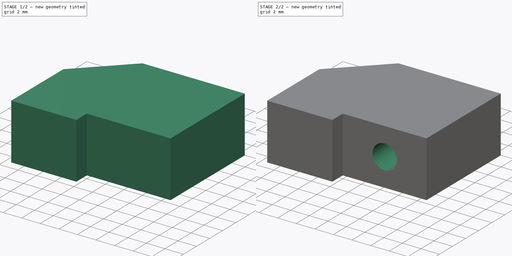
[diagram: build sequence overview — one tinted view per stage of 2, left to right]
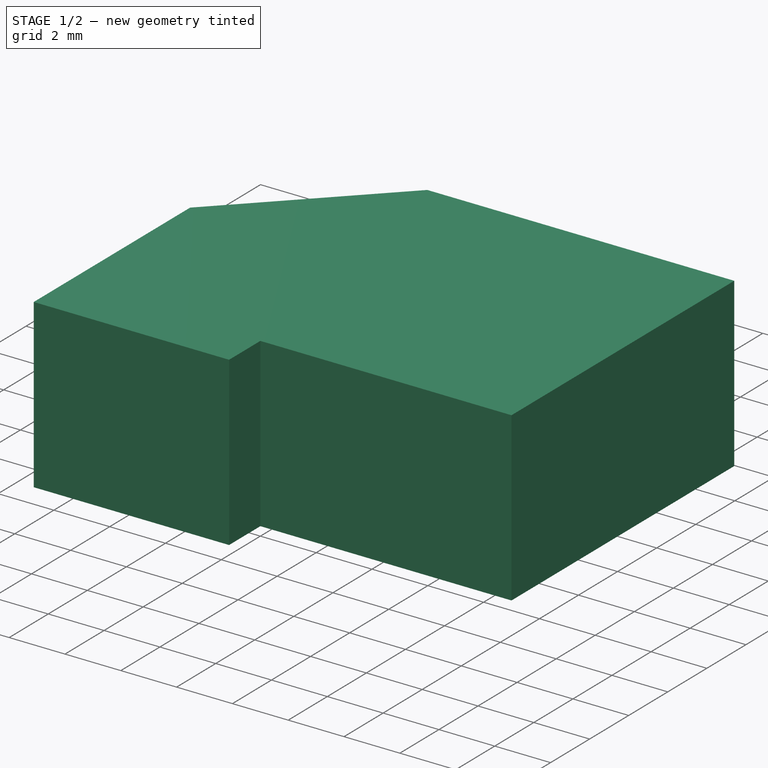
[diagram: stage 1 of 2 — iso view after this stage's code; geometry added in this stage tinted green]
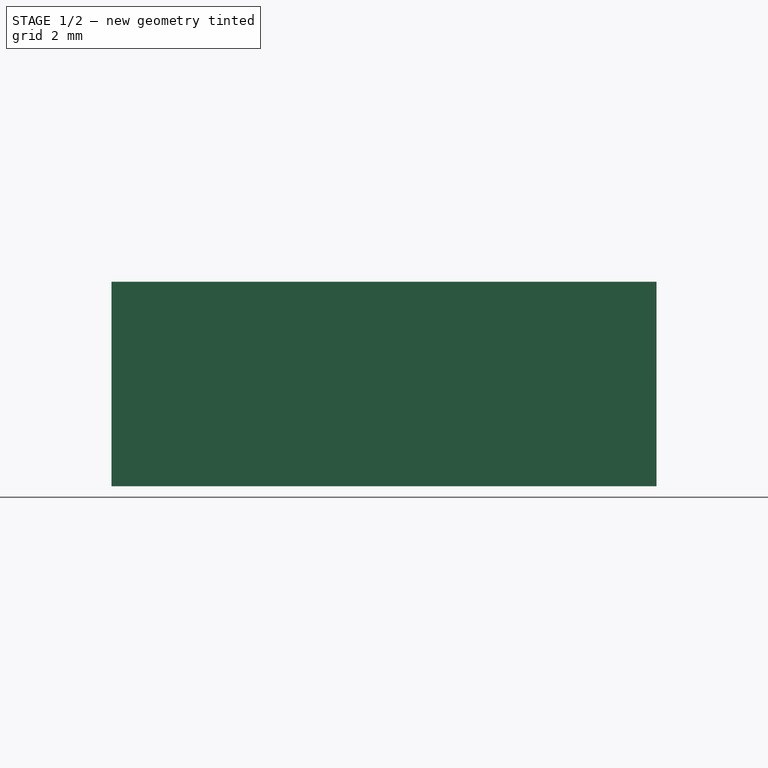
[diagram: stage 1 of 2 — front view after this stage's code; geometry added in this stage tinted green]
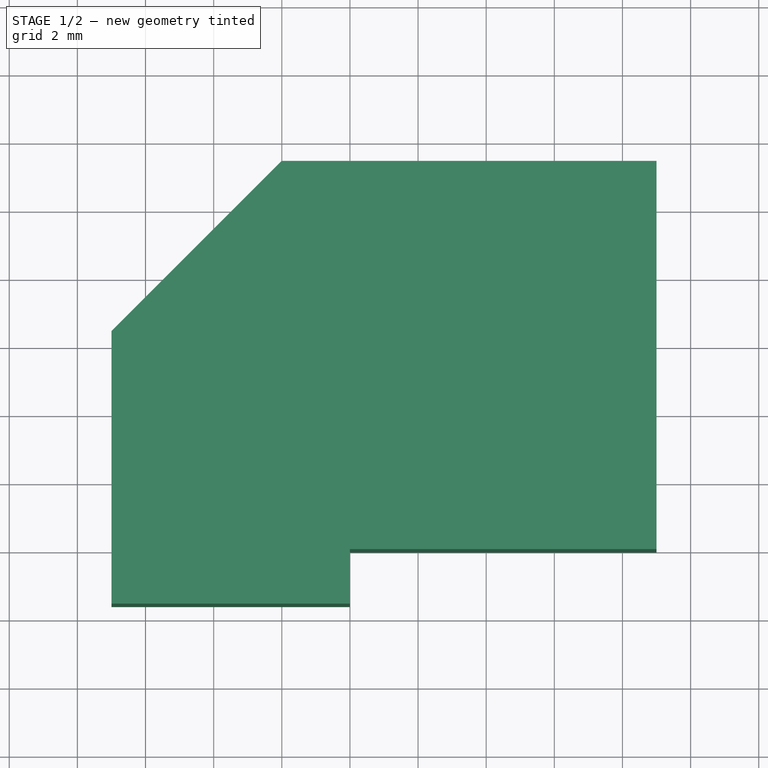
[diagram: stage 1 of 2 — top view after this stage's code; geometry added in this stage tinted green]
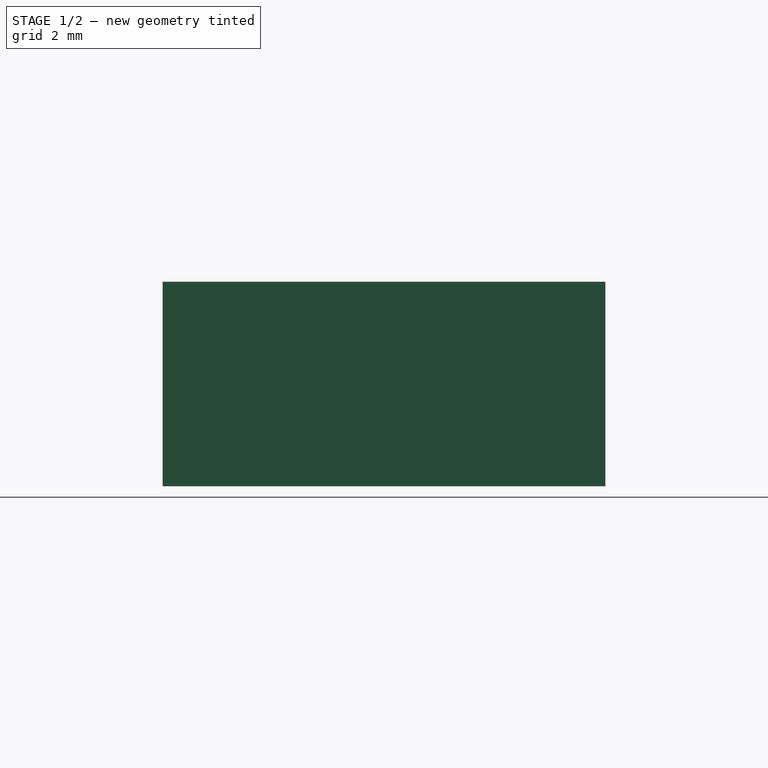
[diagram: stage 1 of 2 — right view after this stage's code; geometry added in this stage tinted green]
FCSTD DOCUMENT  (FreeCAD 0.15R4671 (Git))
Label: pcb-mb
License: All rights reserved
LicenseURL: http://en.wikipedia.org/wiki/All_rights_reserved
objects: Sketcher::SketchObject×3, PartDesign::Pocket×2, PartDesign::Pad×1
note: 9 computed .brp shape members not serialized (recipe doc carries the construction recipe); baked Part::Feature solids carry a one-line shape summary decoded from their .brp

FEATURE [Sketcher::SketchObject] Sketch
  sketch-geometry (7):
    g0: LineSegment StartX=-7 StartY=-1.6 StartZ=0 EndX=0 EndY=-1.6 EndZ=0
    g1: LineSegment StartX=0 StartY=-1.6 StartZ=0 EndX=0 EndY=0 EndZ=0
    g2: LineSegment StartX=0 StartY=0 StartZ=0 EndX=9 EndY=0 EndZ=0
    g3: LineSegment StartX=9 StartY=0 StartZ=0 EndX=9 EndY=11.4 EndZ=0
    g4: LineSegment StartX=9 StartY=11.4 StartZ=0 EndX=-2 EndY=11.4 EndZ=0
    g5: LineSegment StartX=-2 StartY=11.4 StartZ=0 EndX=-7 EndY=6.4 EndZ=0
    g6: LineSegment StartX=-7 StartY=6.4 StartZ=0 EndX=-7 EndY=-1.6 EndZ=0
  constraints (20):
    c: Horizontal(g0)
    c: Coincident(g0,g1)
    c: Vertical(g1)
    c: Coincident(g1,g2)
    c: Horizontal(g2)
    c: Coincident(g2,g3)
    c: Vertical(g3)
    c: Coincident(g3,g4)
    c: Horizontal(g4)
    c: Coincident(g4,g5)
    c: Coincident(g5,g6)
    c: Coincident(g6,g0)
    c: Vertical(g6)
    c: Distance(g2) = 9
    c: DistanceX(g0,g2) = 16
    c: DistanceY(g3,g0) = -13
    c: DistanceX(g4,g0) = -5
    c: Angle(g5,g4) = 2.35619
    c: DistanceY(g1) = 1.6
    c: Coincident(g-1,g1)
FEATURE [PartDesign::Pad] Pad
  Length = 6
  Length2 = 100
  Sketch = -> Sketch
  Type = 0
FEATURE [Sketcher::SketchObject] Sketch001
  Placement = pos=(-7,0,0) rot=(0.57735,-0.57735,-0.57735;2.0944rad)
  Support = -> Pad [Face7]
  sketch-geometry (1):
    g0: Circle CenterX=-2.4 CenterY=3 CenterZ=0 NormalX=0 NormalY=0 NormalZ=1 Radius=1.3
  constraints (3):
    c: DistanceY(g-1,g0) = 3
    c: DistanceX(g-1,g0) = -2.4
    c: Radius(g0) = 1.3
FEATURE [PartDesign::Pocket] Pocket
  Length = 9
  Sketch = -> Sketch001
  Type = 0
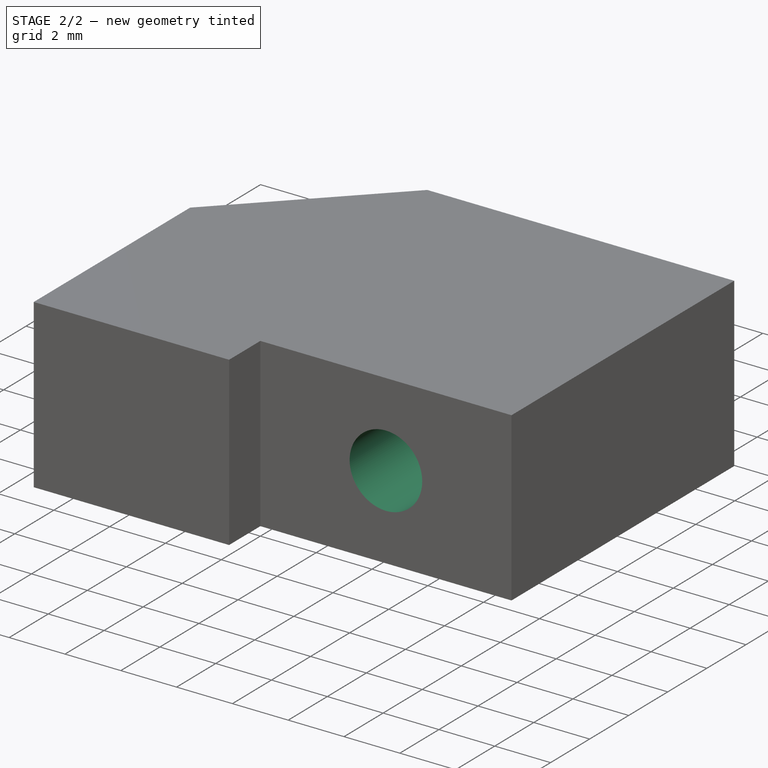
[diagram: stage 2 of 2 — iso view after this stage's code; geometry added in this stage tinted green]
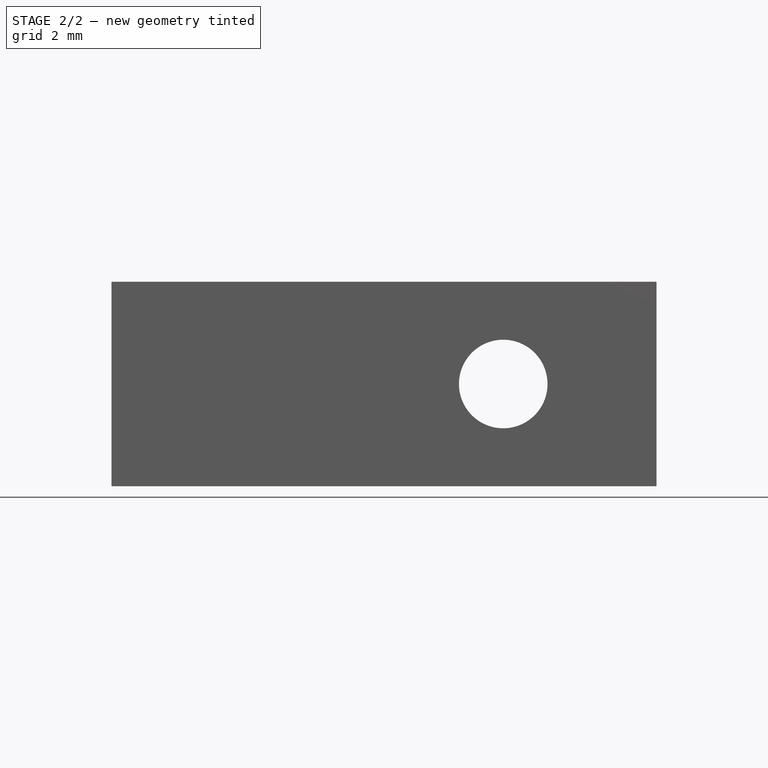
[diagram: stage 2 of 2 — front view after this stage's code; geometry added in this stage tinted green]
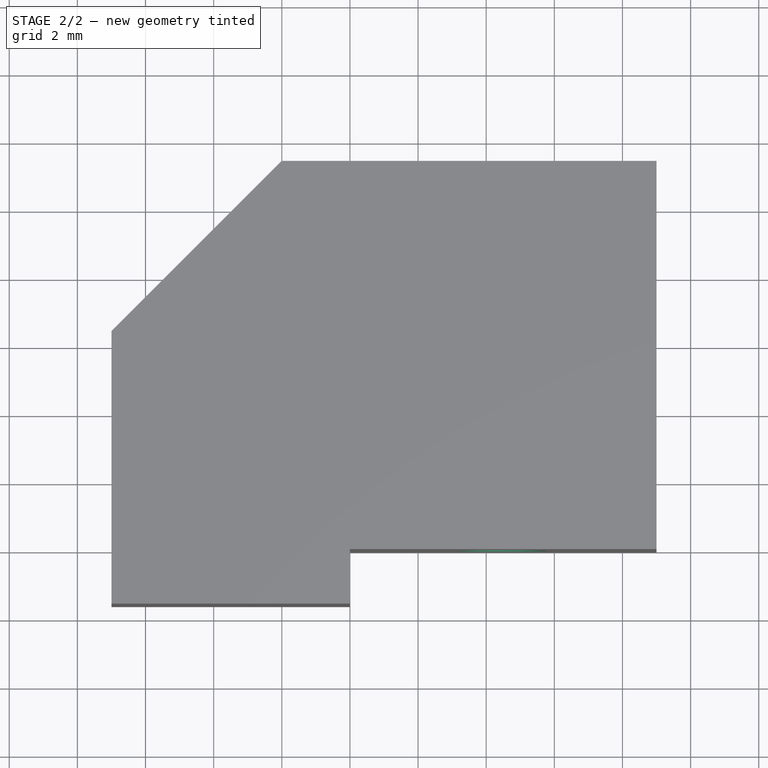
[diagram: stage 2 of 2 — top view after this stage's code; geometry added in this stage tinted green]
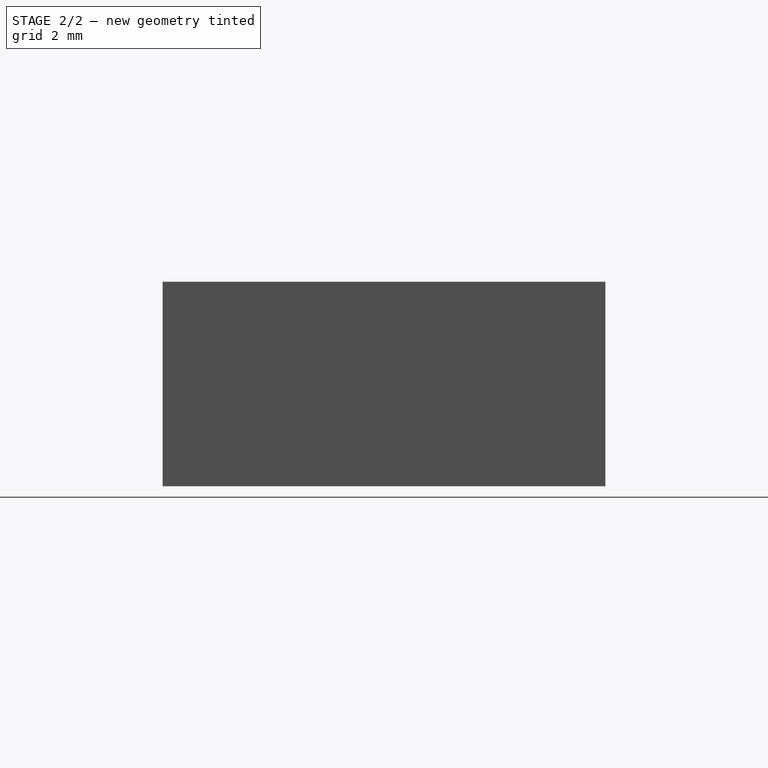
[diagram: stage 2 of 2 — right view after this stage's code; geometry added in this stage tinted green]
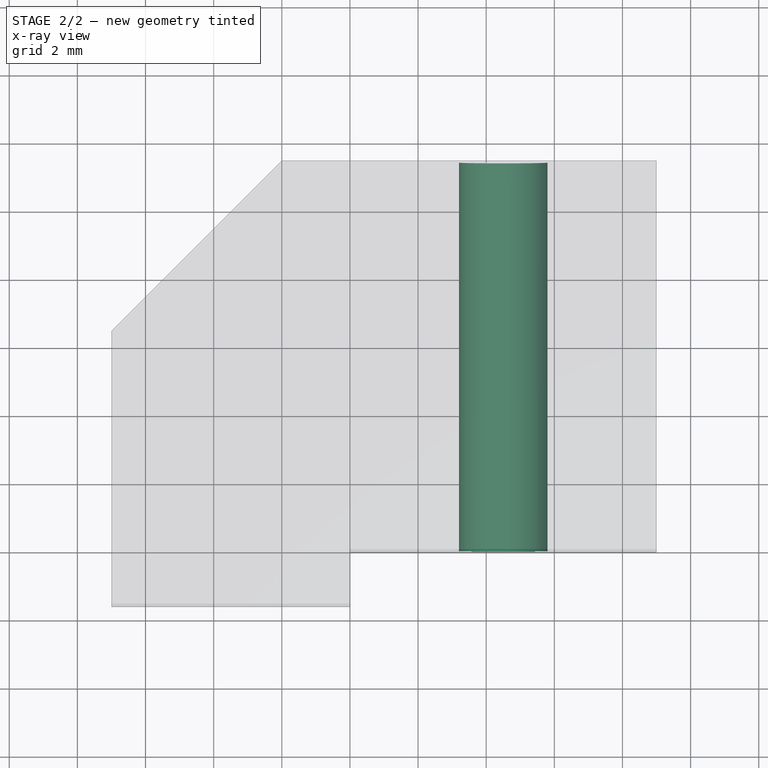
[diagram: stage 2 of 2 — x-ray composite at the top view; earlier geometry ghosted, this stage's added geometry solid]
FEATURE [Sketcher::SketchObject] Sketch002
  Placement = pos=(0,11.4,0) rot=(0,0.707107,0.707107;3.14159rad)
  Support = -> Pocket [Face10]
  sketch-geometry (1):
    g0: Circle CenterX=-4.5 CenterY=3 CenterZ=0 NormalX=0 NormalY=0 NormalZ=1 Radius=1.3
  constraints (3):
    c: Radius(g0) = 1.3
    c: DistanceY(g-1,g0) = 3
    c: DistanceX(g-1,g0) = -4.5
FEATURE [PartDesign::Pocket] Pocket001
  Length = 5
  Sketch = -> Sketch002
  Type = 1
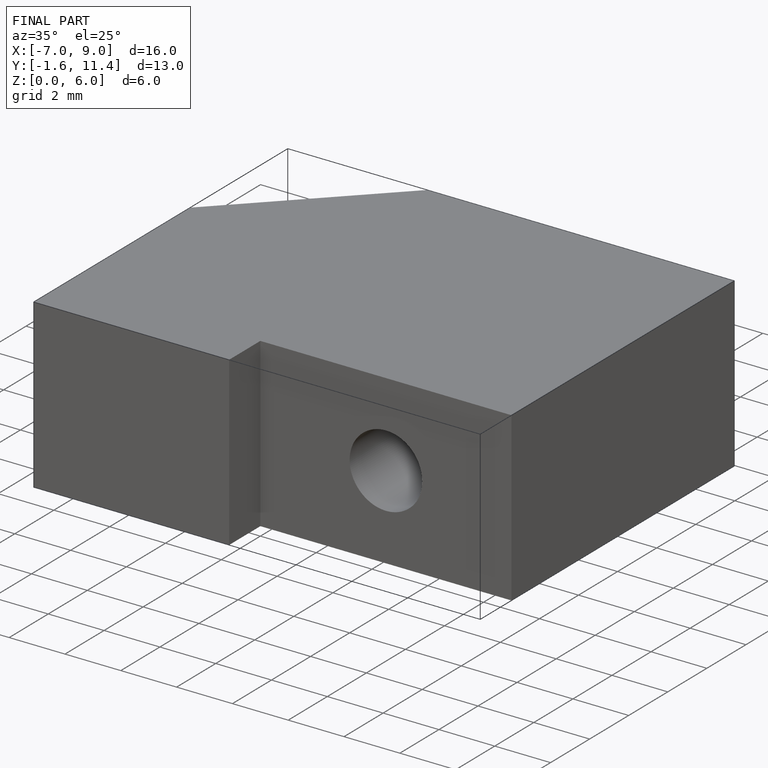
[diagram: finished part — iso view with bounding-box wireframe]
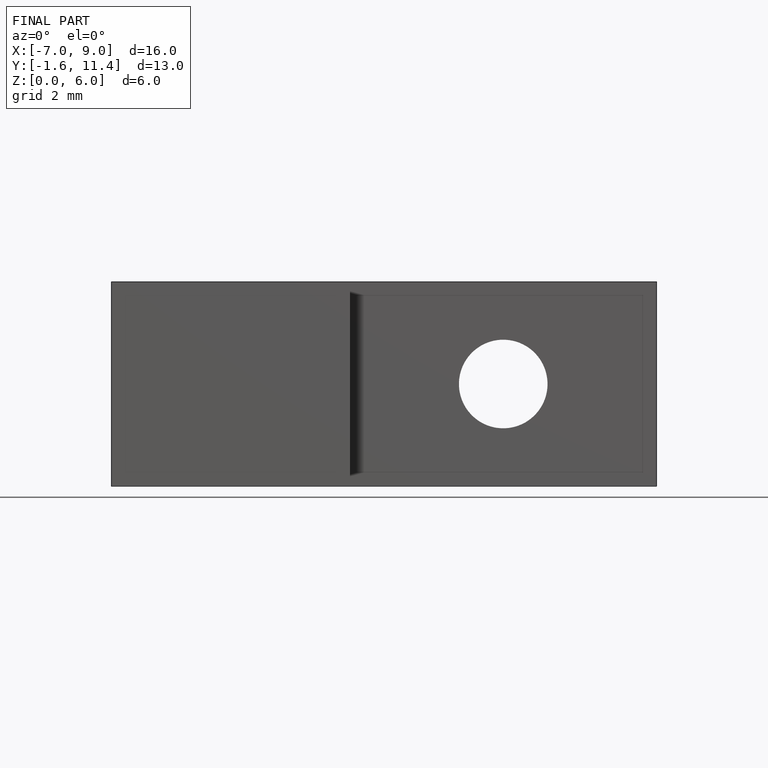
[diagram: finished part — front view with bounding-box wireframe]
